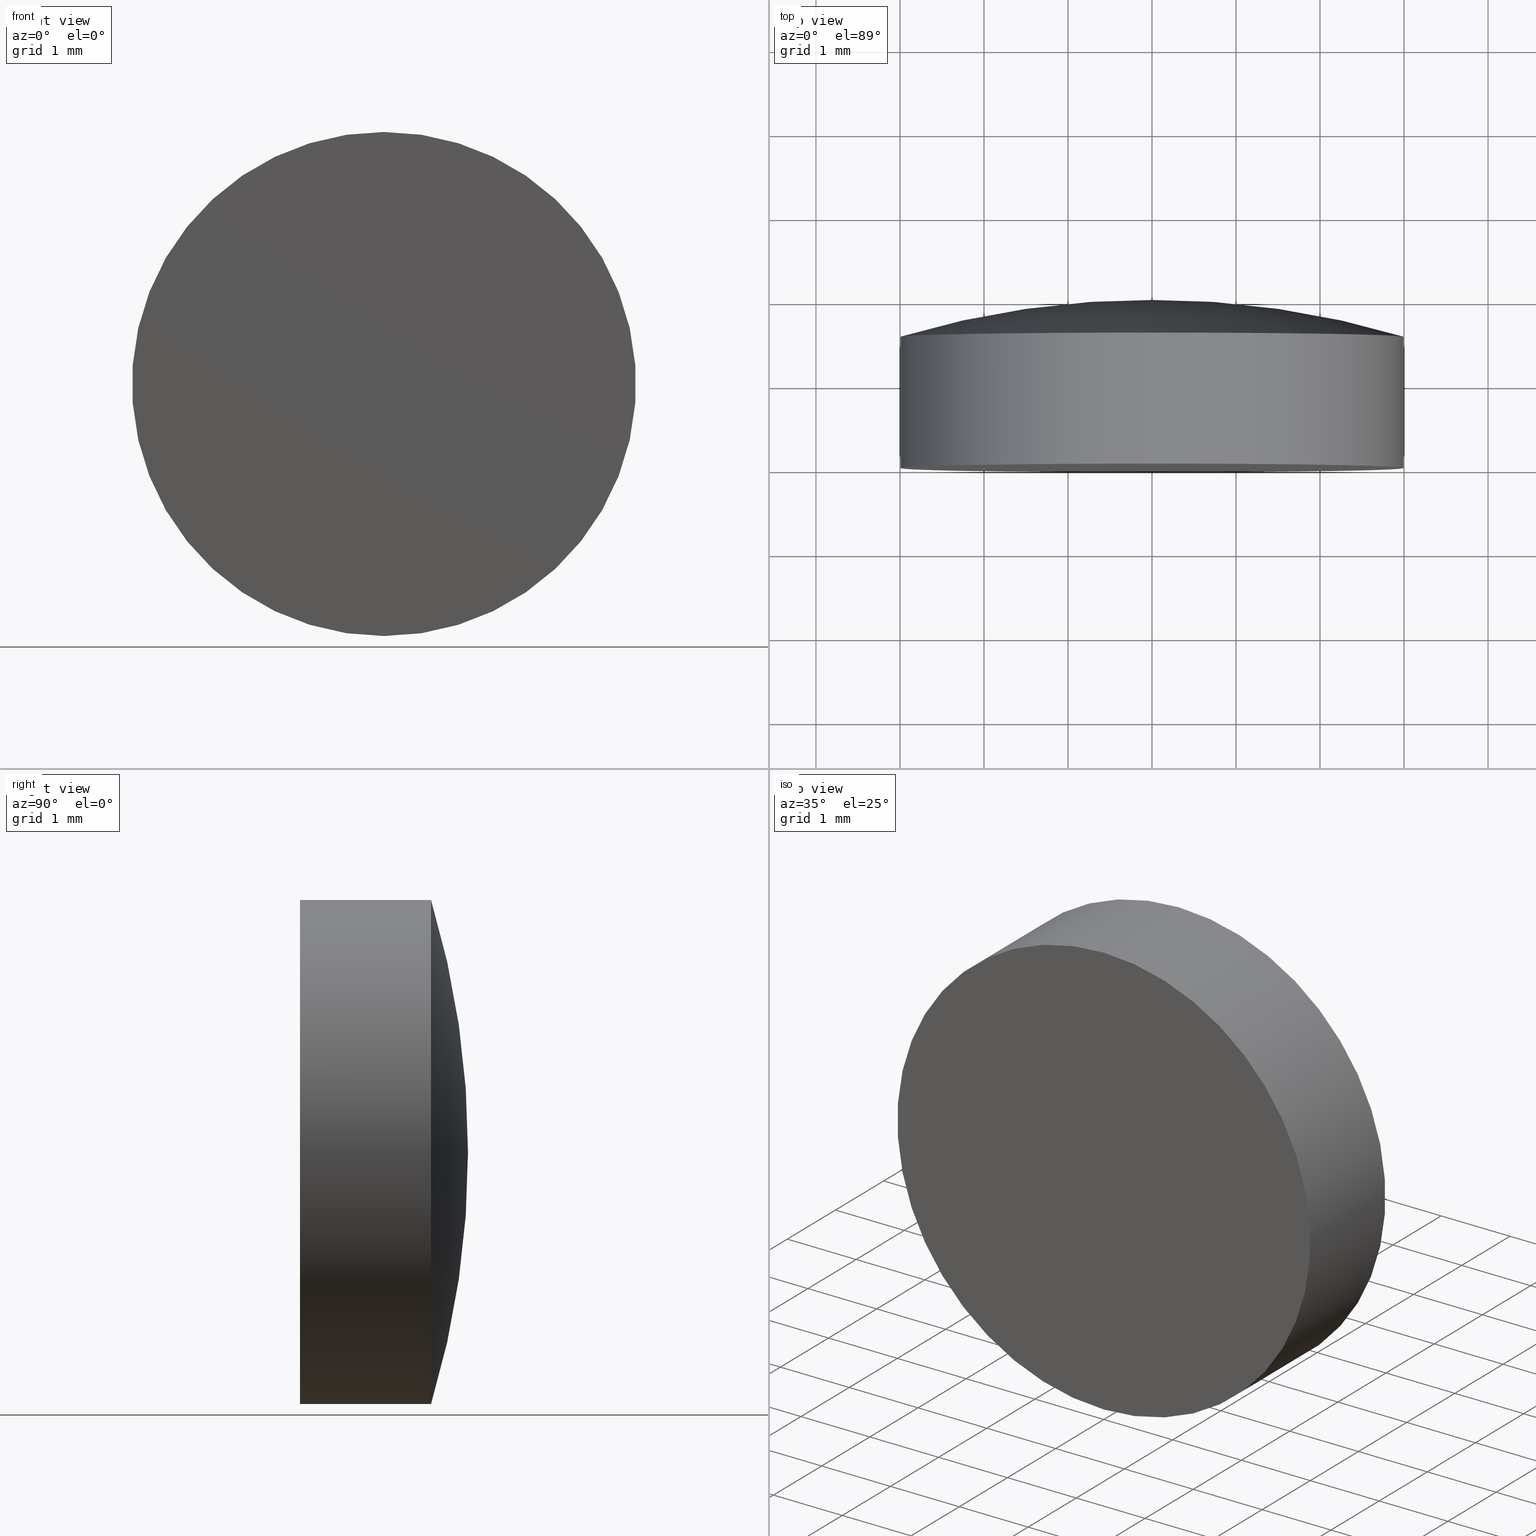
[diagram: canonical four-view strip — front | top / right | iso, engineering-drawing reading convention]
A machine part, canonical four-view strip (front | top / right | iso — engineering-drawing reading convention). The complete STEP part file that produces these views, byte-faithful:
ISO-10303-21;
HEADER;
FILE_DESCRIPTION (( 'STEP AP203' ),
    '1' );
FILE_NAME ('100587.STEP',
    '2024-05-10T01:32:15',
    ( '' ),
    ( '' ),
    'SwSTEP 2.0',
    'SolidWorks 2020',
    '' );
FILE_SCHEMA (( 'CONFIG_CONTROL_DESIGN' ));
ENDSEC;

DATA;
#1 = AXIS2_PLACEMENT_3D ( 'NONE', #73, #138, #66 ) ;
#2 = APPLICATION_PROTOCOL_DEFINITION ( 'international standard', 'config_control_design', 1994, #141 ) ;
#3 = MECHANICAL_CONTEXT ( 'NONE', #54, 'mechanical' ) ;
#4 = ADVANCED_FACE ( 'NONE', ( #153 ), #74, .T. ) ;
#5 = EDGE_CURVE ( 'NONE', #136, #117, #99, .T. ) ;
#6 = APPROVAL_STATUS ( 'not_yet_approved' ) ;
#7 =( NAMED_UNIT ( * ) SI_UNIT ( $, .STERADIAN. ) SOLID_ANGLE_UNIT ( ) );
#8 = EDGE_CURVE ( 'NONE', #137, #136, #131, .T. ) ;
#9 = ORIENTED_EDGE ( 'NONE', *, *, #46, .F. ) ;
#10 = ORIENTED_EDGE ( 'NONE', *, *, #70, .F. ) ;
#11 = AXIS2_PLACEMENT_3D ( 'NONE', #133, #115, #183 ) ;
#12 = DIRECTION ( 'NONE',  ( 0.000000000000000000, -0.000000000000000000, -1.000000000000000000 ) ) ;
#13 = CC_DESIGN_APPROVAL ( #100, ( #189 ) ) ;
#14 = PRODUCT_RELATED_PRODUCT_CATEGORY ( 'detail', '', ( #48 ) ) ;
#15 = CC_DESIGN_PERSON_AND_ORGANIZATION_ASSIGNMENT ( #161, #127, ( #182 ) ) ;
#16 = FACE_OUTER_BOUND ( 'NONE', #103, .T. ) ;
#17 = DIRECTION ( 'NONE',  ( -0.000000000000000000, 1.000000000000000000, -0.000000000000000000 ) ) ;
#18 = CARTESIAN_POINT ( 'NONE',  ( 0.000000000000000000, 1.559999999999999387, 2.999999999999999112 ) ) ;
#19 = DATE_AND_TIME ( #158, #49 ) ;
#20 = DATE_AND_TIME ( #93, #97 ) ;
#21 = CIRCLE ( 'NONE', #77, 3.000000000000000000 ) ;
#22 = ADVANCED_FACE ( 'NONE', ( #134 ), #174, .T. ) ;
#23 = APPROVAL_DATE_TIME ( #19, #185 ) ;
#24 = PERSON_AND_ORGANIZATION ( #86, #140 ) ;
#25 = PERSON_AND_ORGANIZATION_ROLE ( 'creator' ) ;
#26 = AXIS2_PLACEMENT_3D ( 'NONE', #88, #78, #172 ) ;
#27 = LOCAL_TIME ( 9, 32, 15.00000000000000000, #162 ) ;
#28 = ORIENTED_EDGE ( 'NONE', *, *, #70, .T. ) ;
#29 = CIRCLE ( 'NONE', #11, 10.35999999999999766 ) ;
#30 = CC_DESIGN_DATE_AND_TIME_ASSIGNMENT ( #20, #112, ( #189 ) ) ;
#31 =( GEOMETRIC_REPRESENTATION_CONTEXT ( 3 ) GLOBAL_UNCERTAINTY_ASSIGNED_CONTEXT ( ( #135 ) ) GLOBAL_UNIT_ASSIGNED_CONTEXT ( ( #139, #59, #7 ) ) REPRESENTATION_CONTEXT ( 'NONE', 'WORKASPACE' ) );
#32 = DIRECTION ( 'NONE',  ( 0.000000000000000000, 0.000000000000000000, 1.000000000000000000 ) ) ;
#33 = CARTESIAN_POINT ( 'NONE',  ( 0.000000000000000000, -8.359992091227860911, 0.000000000000000000 ) ) ;
#34 = ORIENTED_EDGE ( 'NONE', *, *, #58, .F. ) ;
#35 = DIRECTION ( 'NONE',  ( -0.000000000000000000, 1.000000000000000000, -0.000000000000000000 ) ) ;
#36 = EDGE_LOOP ( 'NONE', ( #63, #147, #9, #149 ) ) ;
#37 = COORDINATED_UNIVERSAL_TIME_OFFSET ( 8, 0, .AHEAD. ) ;
#38 = CARTESIAN_POINT ( 'NONE',  ( 0.000000000000000000, 0.000000000000000000, 0.000000000000000000 ) ) ;
#39 = APPROVAL_STATUS ( 'not_yet_approved' ) ;
#40 = SHAPE_DEFINITION_REPRESENTATION ( #195, #179 ) ;
#41 = ORIENTED_EDGE ( 'NONE', *, *, #5, .T. ) ;
#42 = ORIENTED_EDGE ( 'NONE', *, *, #8, .F. ) ;
#43 = EDGE_CURVE ( 'NONE', #117, #165, #194, .T. ) ;
#44 = ADVANCED_FACE ( 'NONE', ( #170 ), #55, .T. ) ;
#45 = AXIS2_PLACEMENT_3D ( 'NONE', #89, #155, #32 ) ;
#46 = EDGE_CURVE ( 'NONE', #117, #98, #177, .T. ) ;
#47 = CARTESIAN_POINT ( 'NONE',  ( 0.000000000000000000, -4.336808689942017736E-16, 3.000000000000000000 ) ) ;
#48 = PRODUCT ( '100587', '100587', '', ( #3 ) ) ;
#49 = LOCAL_TIME ( 9, 32, 15.00000000000000000, #94 ) ;
#50 = CARTESIAN_POINT ( 'NONE',  ( 3.673940397442059868E-16, 2.000000000000000000, -3.000000000000000000 ) ) ;
#51 = FACE_OUTER_BOUND ( 'NONE', #129, .T. ) ;
#52 = DIRECTION ( 'NONE',  ( -0.000000000000000000, 1.000000000000000000, -0.000000000000000000 ) ) ;
#53 = DIRECTION ( 'NONE',  ( -1.000000000000000000, 0.000000000000000000, 0.000000000000000000 ) ) ;
#54 = APPLICATION_CONTEXT ( 'configuration controlled 3d designs of mechanical parts and assemblies' ) ;
#55 = TOROIDAL_SURFACE ( 'NONE', #148, 0.01280115995324552884, 10.35999999999999766 ) ;
#56 = APPROVAL_DATE_TIME ( #190, #146 ) ;
#57 = CC_DESIGN_PERSON_AND_ORGANIZATION_ASSIGNMENT ( #176, #192, ( #189 ) ) ;
#58 = EDGE_CURVE ( 'NONE', #137, #98, #197, .T. ) ;
#59 =( NAMED_UNIT ( * ) PLANE_ANGLE_UNIT ( ) SI_UNIT ( $, .RADIAN. ) );
#60 = COORDINATED_UNIVERSAL_TIME_OFFSET ( 8, 0, .AHEAD. ) ;
#61 = ADVANCED_FACE ( 'NONE', ( #16 ), #75, .T. ) ;
#62 = DIRECTION ( 'NONE',  ( -0.000000000000000000, 1.000000000000000000, -0.000000000000000000 ) ) ;
#63 = ORIENTED_EDGE ( 'NONE', *, *, #124, .T. ) ;
#64 = DIRECTION ( 'NONE',  ( 0.000000000000000000, -1.000000000000000000, 0.000000000000000000 ) ) ;
#65 = DIRECTION ( 'NONE',  ( 0.000000000000000000, 0.000000000000000000, 1.000000000000000000 ) ) ;
#66 = DIRECTION ( 'NONE',  ( 0.000000000000000000, 0.000000000000000000, 1.000000000000000000 ) ) ;
#67 = PERSON_AND_ORGANIZATION ( #86, #140 ) ;
#68 = CARTESIAN_POINT ( 'NONE',  ( 0.000000000000000000, 2.000000000000000000, 0.000000000000000000 ) ) ;
#69 = EDGE_LOOP ( 'NONE', ( #166, #145, #193 ) ) ;
#70 = EDGE_CURVE ( 'NONE', #98, #117, #21, .T. ) ;
#71 = ORIENTED_EDGE ( 'NONE', *, *, #124, .F. ) ;
#72 = MANIFOLD_SOLID_BREP ( '��ת1', #105 ) ;
#73 = CARTESIAN_POINT ( 'NONE',  ( 0.000000000000000000, -4.336808689942017736E-16, 0.000000000000000000 ) ) ;
#74 = CYLINDRICAL_SURFACE ( 'NONE', #45, 3.000000000000000000 ) ;
#75 = PLANE ( 'NONE',  #199 ) ;
#76 = ADVANCED_FACE ( 'NONE', ( #51 ), #186, .T. ) ;
#77 = AXIS2_PLACEMENT_3D ( 'NONE', #118, #52, #104 ) ;
#78 = DIRECTION ( 'NONE',  ( -0.000000000000000000, 1.000000000000000000, -0.000000000000000000 ) ) ;
#79 = EDGE_LOOP ( 'NONE', ( #120, #28, #196 ) ) ;
#80 = PERSON_AND_ORGANIZATION ( #86, #140 ) ;
#81 = AXIS2_PLACEMENT_3D ( 'NONE', #38, #143, #159 ) ;
#82 = CC_DESIGN_APPROVAL ( #146, ( #151 ) ) ;
#83 = CARTESIAN_POINT ( 'NONE',  ( 3.673940397442059868E-16, -4.336808689942017736E-16, -3.000000000000000000 ) ) ;
#84 = SECURITY_CLASSIFICATION_LEVEL ( 'unclassified' ) ;
#85 = DATE_AND_TIME ( #126, #167 ) ;
#86 = PERSON ( 'δָ��', 'δָ��', 'δָ��', ('δָ��'), ('δָ��'), ('δָ��') ) ;
#87 = AXIS2_PLACEMENT_3D ( 'NONE', #200, #62, #65 ) ;
#88 = CARTESIAN_POINT ( 'NONE',  ( 0.000000000000000000, -8.359992091227860911, 0.000000000000000000 ) ) ;
#89 = CARTESIAN_POINT ( 'NONE',  ( 0.000000000000000000, 2.000000000000000000, 0.000000000000000000 ) ) ;
#90 = DIRECTION ( 'NONE',  ( 0.000000000000000000, 0.000000000000000000, 1.000000000000000000 ) ) ;
#91 = DIRECTION ( 'NONE',  ( 0.000000000000000000, 0.000000000000000000, 1.000000000000000000 ) ) ;
#92 = APPLICATION_PROTOCOL_DEFINITION ( 'international standard', 'config_control_design', 1994, #54 ) ;
#93 = CALENDAR_DATE ( 2024, 10, 5 ) ;
#94 = COORDINATED_UNIVERSAL_TIME_OFFSET ( 8, 0, .AHEAD. ) ;
#95 = APPROVAL_ROLE ( '' ) ;
#96 = CALENDAR_DATE ( 2024, 10, 5 ) ;
#97 = LOCAL_TIME ( 9, 32, 15.00000000000000000, #37 ) ;
#98 = VERTEX_POINT ( 'NONE', #157 ) ;
#99 = LINE ( 'NONE', #184, #156 ) ;
#100 = APPROVAL ( #39, 'δָ��' ) ;
#101 = APPROVAL_PERSON_ORGANIZATION ( #108, #185, #181 ) ;
#102 = APPROVAL_PERSON_ORGANIZATION ( #110, #146, #178 ) ;
#103 = EDGE_LOOP ( 'NONE', ( #71, #42 ) ) ;
#104 = DIRECTION ( 'NONE',  ( 0.000000000000000000, 0.000000000000000000, 1.000000000000000000 ) ) ;
#105 = CLOSED_SHELL ( 'NONE', ( #4, #44, #22, #61, #76 ) ) ;
#106 = DIRECTION ( 'NONE',  ( 0.000000000000000000, 0.000000000000000000, 1.000000000000000000 ) ) ;
#107 = PERSON_AND_ORGANIZATION_ROLE ( 'design_supplier' ) ;
#108 = PERSON_AND_ORGANIZATION ( #86, #140 ) ;
#109 = CC_DESIGN_PERSON_AND_ORGANIZATION_ASSIGNMENT ( #24, #25, ( #151 ) ) ;
#110 = PERSON_AND_ORGANIZATION ( #86, #140 ) ;
#111 = APPROVAL_PERSON_ORGANIZATION ( #180, #100, #95 ) ;
#112 = DATE_TIME_ROLE ( 'classification_date' ) ;
#113 = PERSON_AND_ORGANIZATION_ROLE ( 'design_owner' ) ;
#114 = CC_DESIGN_SECURITY_CLASSIFICATION ( #189, ( #151 ) ) ;
#115 = DIRECTION ( 'NONE',  ( 1.000000000000000000, 0.000000000000000000, 1.224646799147353207E-16 ) ) ;
#116 = CC_DESIGN_PERSON_AND_ORGANIZATION_ASSIGNMENT ( #80, #107, ( #151 ) ) ;
#117 = VERTEX_POINT ( 'NONE', #18 ) ;
#118 = CARTESIAN_POINT ( 'NONE',  ( 0.000000000000000000, 1.559999999999999609, 0.000000000000000000 ) ) ;
#119 = CARTESIAN_POINT ( 'NONE',  ( 0.000000000000000000, -1.836970198721029688E-16, 0.000000000000000000 ) ) ;
#120 = ORIENTED_EDGE ( 'NONE', *, *, #125, .F. ) ;
#121 = AXIS2_PLACEMENT_3D ( 'NONE', #173, #35, #91 ) ;
#122 = CALENDAR_DATE ( 2024, 10, 5 ) ;
#123 = APPROVAL_STATUS ( 'not_yet_approved' ) ;
#124 = EDGE_CURVE ( 'NONE', #136, #137, #169, .T. ) ;
#125 = EDGE_CURVE ( 'NONE', #98, #165, #29, .T. ) ;
#126 = CALENDAR_DATE ( 2024, 10, 5 ) ;
#127 = PERSON_AND_ORGANIZATION_ROLE ( 'creator' ) ;
#128 = LOCAL_TIME ( 9, 32, 15.00000000000000000, #60 ) ;
#129 = EDGE_LOOP ( 'NONE', ( #34, #198, #41, #10 ) ) ;
#130 = APPROVAL_DATE_TIME ( #163, #100 ) ;
#131 = CIRCLE ( 'NONE', #160, 3.000000000000000000 ) ;
#132 = AXIS2_PLACEMENT_3D ( 'NONE', #188, #53, #106 ) ;
#133 = CARTESIAN_POINT ( 'NONE',  ( 1.567689956211541805E-18, -8.359992091227860911, -0.01280115995324552884 ) ) ;
#134 = FACE_OUTER_BOUND ( 'NONE', #79, .T. ) ;
#135 = UNCERTAINTY_MEASURE_WITH_UNIT (LENGTH_MEASURE( 1.000000000000000082E-05 ), #139, 'distance_accuracy_value', 'NONE');
#136 = VERTEX_POINT ( 'NONE', #47 ) ;
#137 = VERTEX_POINT ( 'NONE', #83 ) ;
#138 = DIRECTION ( 'NONE',  ( -0.000000000000000000, 1.000000000000000000, -0.000000000000000000 ) ) ;
#139 =( LENGTH_UNIT ( ) NAMED_UNIT ( * ) SI_UNIT ( .MILLI., .METRE. ) );
#140 = ORGANIZATION ( 'δָ��', 'δָ��', '' ) ;
#141 = APPLICATION_CONTEXT ( 'configuration controlled 3d designs of mechanical parts and assemblies' ) ;
#142 = COORDINATED_UNIVERSAL_TIME_OFFSET ( 8, 0, .AHEAD. ) ;
#143 = DIRECTION ( 'NONE',  ( 0.000000000000000000, 0.000000000000000000, 1.000000000000000000 ) ) ;
#144 = CC_DESIGN_APPROVAL ( #185, ( #182 ) ) ;
#145 = ORIENTED_EDGE ( 'NONE', *, *, #125, .T. ) ;
#146 = APPROVAL ( #6, 'δָ��' ) ;
#147 = ORIENTED_EDGE ( 'NONE', *, *, #58, .T. ) ;
#148 = AXIS2_PLACEMENT_3D ( 'NONE', #33, #17, #175 ) ;
#149 = ORIENTED_EDGE ( 'NONE', *, *, #5, .F. ) ;
#150 = DIRECTION ( 'NONE',  ( -0.000000000000000000, 1.000000000000000000, -0.000000000000000000 ) ) ;
#151 = PRODUCT_DEFINITION_FORMATION_WITH_SPECIFIED_SOURCE ( '�κ�', '', #48, .NOT_KNOWN. ) ;
#152 = DESIGN_CONTEXT ( 'detailed design', #141, 'design' ) ;
#153 = FACE_OUTER_BOUND ( 'NONE', #36, .T. ) ;
#154 = CARTESIAN_POINT ( 'NONE',  ( 0.000000000000000000, -4.336808689942017736E-16, 0.000000000000000000 ) ) ;
#155 = DIRECTION ( 'NONE',  ( -0.000000000000000000, 1.000000000000000000, -0.000000000000000000 ) ) ;
#156 = VECTOR ( 'NONE', #201, 1000.000000000000000 ) ;
#157 = CARTESIAN_POINT ( 'NONE',  ( 3.673940397442058882E-16, 1.559999999999999387, -2.999999999999999112 ) ) ;
#158 = CALENDAR_DATE ( 2024, 10, 5 ) ;
#159 = DIRECTION ( 'NONE',  ( 1.000000000000000000, 0.000000000000000000, 0.000000000000000000 ) ) ;
#160 = AXIS2_PLACEMENT_3D ( 'NONE', #154, #168, #90 ) ;
#161 = PERSON_AND_ORGANIZATION ( #86, #140 ) ;
#162 = COORDINATED_UNIVERSAL_TIME_OFFSET ( 8, 0, .AHEAD. ) ;
#163 = DATE_AND_TIME ( #96, #27 ) ;
#164 = VECTOR ( 'NONE', #150, 1000.000000000000000 ) ;
#165 = VERTEX_POINT ( 'NONE', #68 ) ;
#166 = ORIENTED_EDGE ( 'NONE', *, *, #46, .T. ) ;
#167 = LOCAL_TIME ( 9, 32, 15.00000000000000000, #142 ) ;
#168 = DIRECTION ( 'NONE',  ( -0.000000000000000000, 1.000000000000000000, -0.000000000000000000 ) ) ;
#169 = CIRCLE ( 'NONE', #1, 3.000000000000000000 ) ;
#170 = FACE_OUTER_BOUND ( 'NONE', #69, .T. ) ;
#171 = CC_DESIGN_PERSON_AND_ORGANIZATION_ASSIGNMENT ( #67, #113, ( #48 ) ) ;
#172 = DIRECTION ( 'NONE',  ( 0.000000000000000000, 0.000000000000000000, 1.000000000000000000 ) ) ;
#173 = CARTESIAN_POINT ( 'NONE',  ( 0.000000000000000000, 2.000000000000000000, 0.000000000000000000 ) ) ;
#174 = TOROIDAL_SURFACE ( 'NONE', #26, 0.01280115995324552884, 10.35999999999999766 ) ;
#175 = DIRECTION ( 'NONE',  ( 0.000000000000000000, 0.000000000000000000, 1.000000000000000000 ) ) ;
#176 = PERSON_AND_ORGANIZATION ( #86, #140 ) ;
#177 = CIRCLE ( 'NONE', #87, 3.000000000000000000 ) ;
#178 = APPROVAL_ROLE ( '' ) ;
#179 = ADVANCED_BREP_SHAPE_REPRESENTATION ( '100587', ( #72, #81 ), #31 ) ;
#180 = PERSON_AND_ORGANIZATION ( #86, #140 ) ;
#181 = APPROVAL_ROLE ( '' ) ;
#182 = PRODUCT_DEFINITION ( 'δ֪', '', #151, #152 ) ;
#183 = DIRECTION ( 'NONE',  ( 1.224646799147353207E-16, 0.000000000000000000, -1.000000000000000000 ) ) ;
#184 = CARTESIAN_POINT ( 'NONE',  ( 0.000000000000000000, 2.000000000000000000, 3.000000000000000000 ) ) ;
#185 = APPROVAL ( #123, 'δָ��' ) ;
#186 = CYLINDRICAL_SURFACE ( 'NONE', #121, 3.000000000000000000 ) ;
#187 = CC_DESIGN_DATE_AND_TIME_ASSIGNMENT ( #85, #191, ( #182 ) ) ;
#188 = CARTESIAN_POINT ( 'NONE',  ( 0.000000000000000000, -8.359992091227860911, 0.01280115995324552884 ) ) ;
#189 = SECURITY_CLASSIFICATION ( '', '', #84 ) ;
#190 = DATE_AND_TIME ( #122, #128 ) ;
#191 = DATE_TIME_ROLE ( 'creation_date' ) ;
#192 = PERSON_AND_ORGANIZATION_ROLE ( 'classification_officer' ) ;
#193 = ORIENTED_EDGE ( 'NONE', *, *, #43, .F. ) ;
#194 = CIRCLE ( 'NONE', #132, 10.35999999999999766 ) ;
#195 = PRODUCT_DEFINITION_SHAPE ( 'NONE', 'NONE',  #182 ) ;
#196 = ORIENTED_EDGE ( 'NONE', *, *, #43, .T. ) ;
#197 = LINE ( 'NONE', #50, #164 ) ;
#198 = ORIENTED_EDGE ( 'NONE', *, *, #8, .T. ) ;
#199 = AXIS2_PLACEMENT_3D ( 'NONE', #119, #64, #12 ) ;
#200 = CARTESIAN_POINT ( 'NONE',  ( 0.000000000000000000, 1.559999999999999609, 0.000000000000000000 ) ) ;
#201 = DIRECTION ( 'NONE',  ( -0.000000000000000000, 1.000000000000000000, -0.000000000000000000 ) ) ;
ENDSEC;
END-ISO-10303-21;
